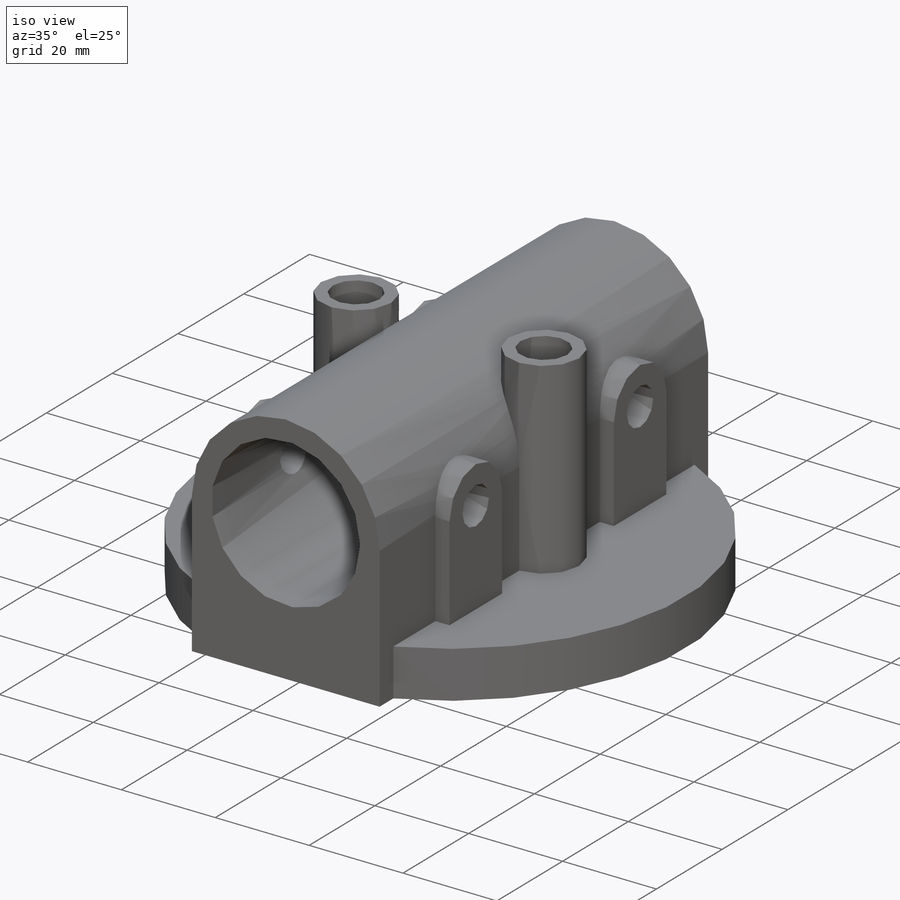
[diagram: iso view]
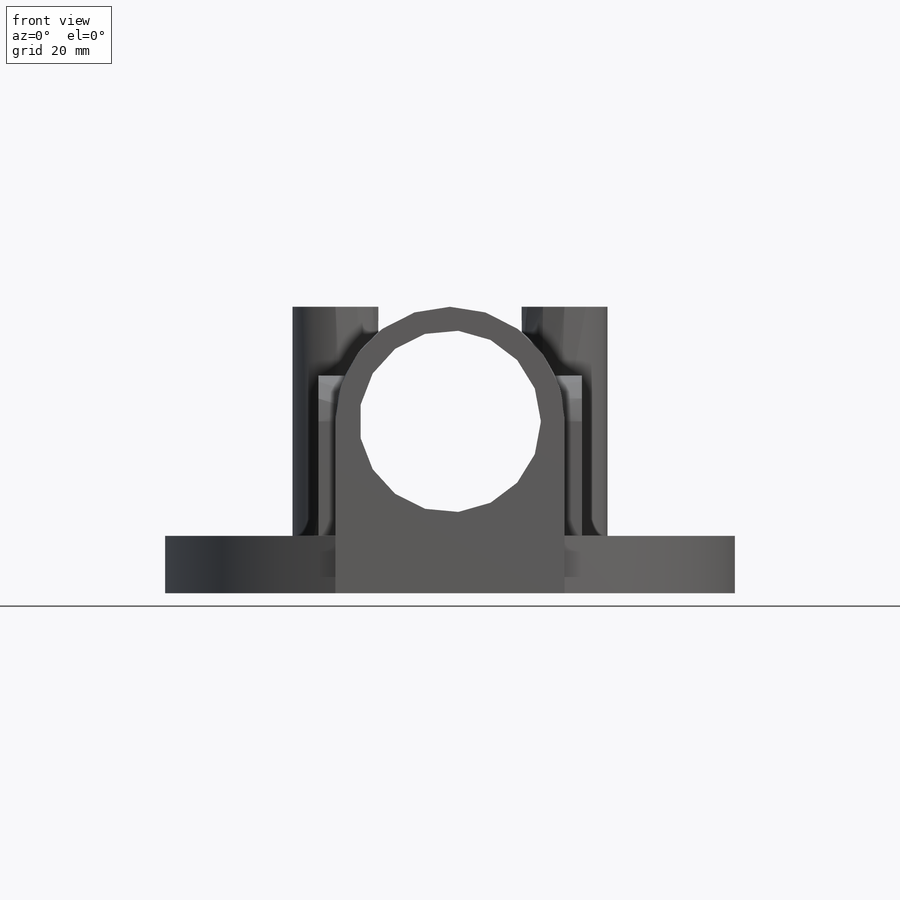
[diagram: front view]
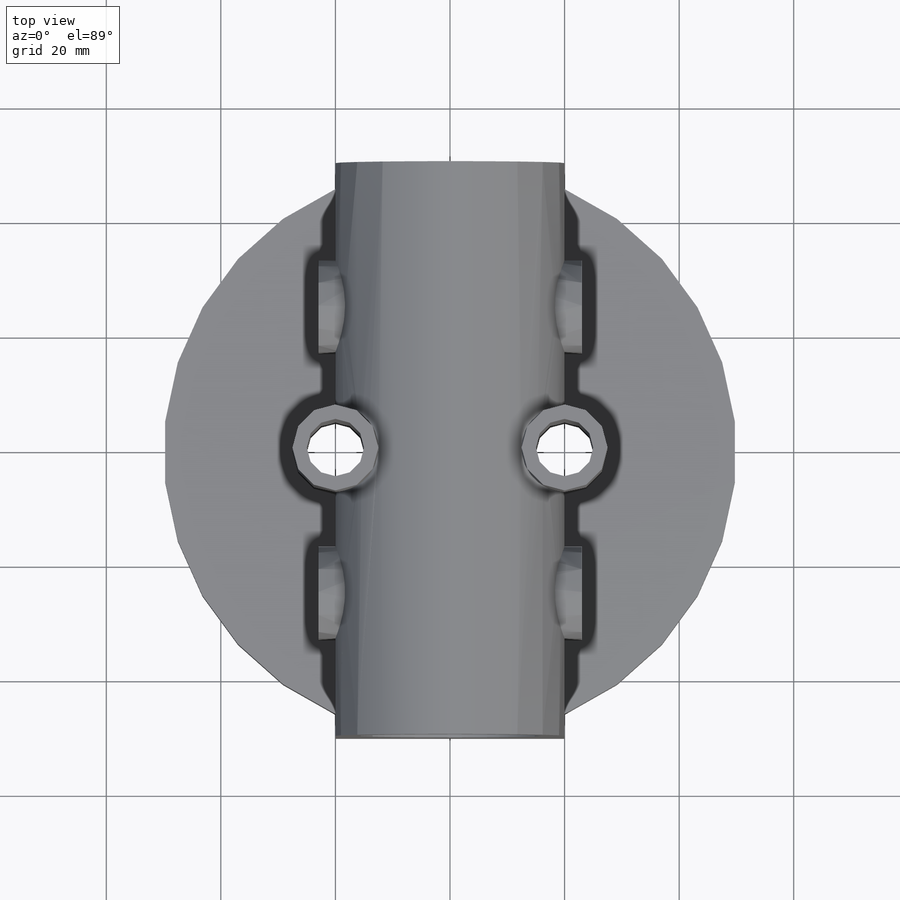
[diagram: top view]
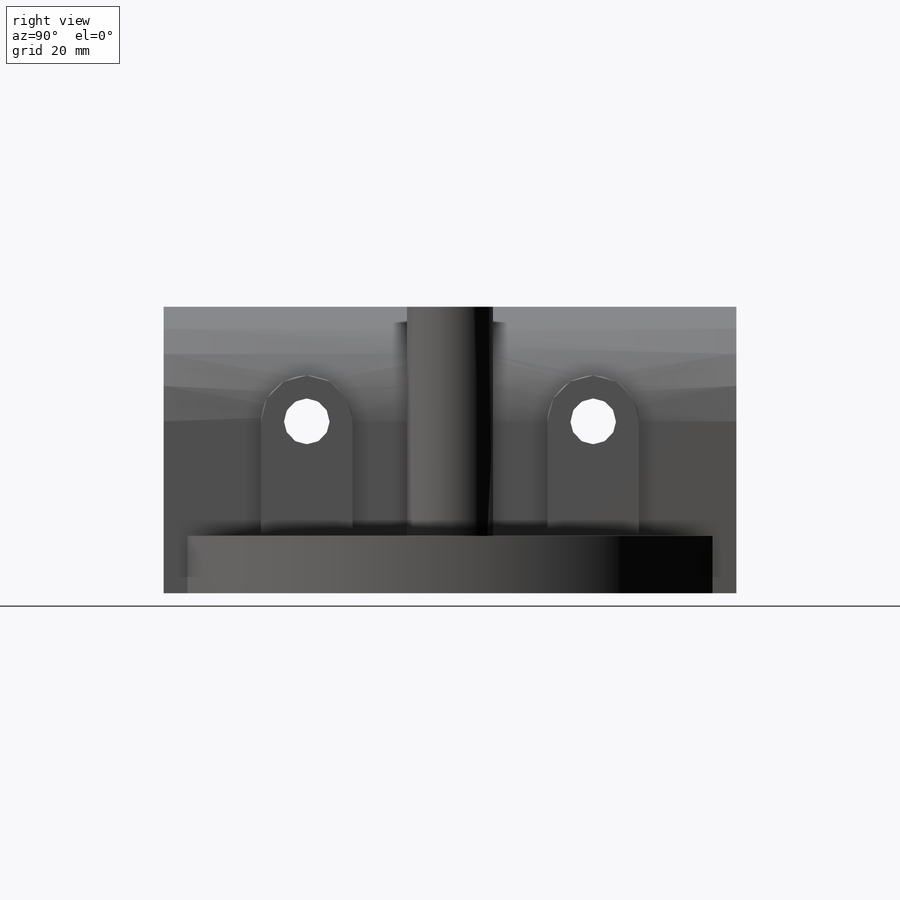
[diagram: right view]
SOLIDWORKS PART (.sldprt)
format: sldprt  version: not decoded by parser v0  size: 422,912 bytes
history: native  units: mm
features: sketch x7, extrude x4, cut_extrude x3, material x1 (+13 scaffold rows collapsed)
feature tree (28):
  scaffold x13  (default folders/planes/origin — collapsed)
  material  "Material <not specified>"
  sketch  "Sketch1"  dims[c1.D1=20.0mm c1.D3=31.75mm c1.D2=30.0mm c2.D3=40.0mm]
  extrude  "Extrude1"  Depth=100mm
  sketch  "Sketch2"  dims[D1=15.0mm D2=10.0mm]
  extrude  "Extrude2"  Depth=10mm
  extrude  "Extrude3"  [1 undecoded]
  sketch  "Sketch2<3>"
  sketch  "Sketch3"  dims[c1.D1=8.0mm c1.D3=8.0mm c1.D2=25.0mm c1.D4=20.0mm c2.D2=25.0mm]
  extrude  "Extrude4"  Depth=3mm
  cut_extrude  "Cut-Extrude1"  [1 undecoded]
  sketch  "Sketch6<4>"
  cut_extrude  "Cut-Extrude2"  [1 undecoded]
  sketch  "Sketch2<4>"
  cut_extrude  "Cut-Extrude3"  [1 undecoded]
  sketch  "Sketch1<3>"
decode coverage: 6 of 14 modeling features carry decoded parameters
note: 4 parameter values undecoded
summary: no parameter record found for 4 features
note: suppression state not decoded; provenance and decode notes live in map.json
